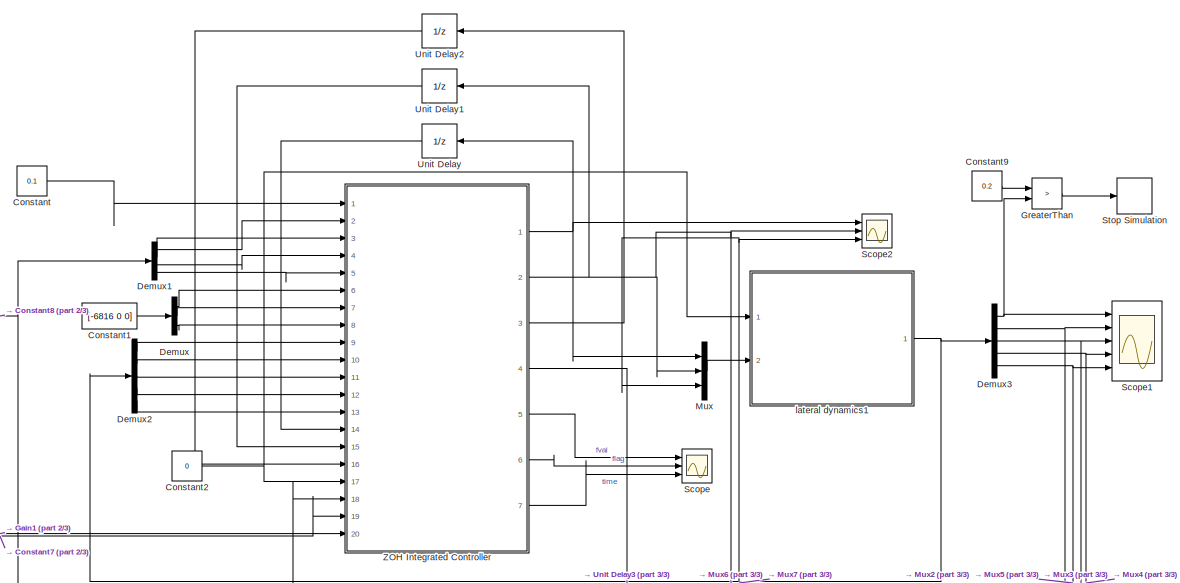
[diagram: root canvas - part 1/3, top center region]
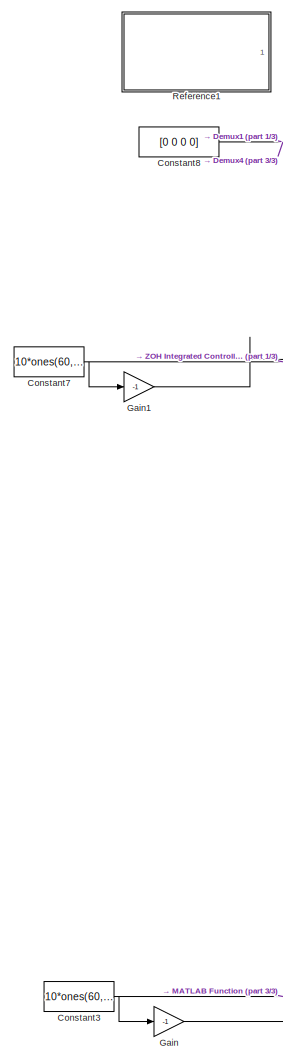
[diagram: root canvas - part 2/3, left side, full height]
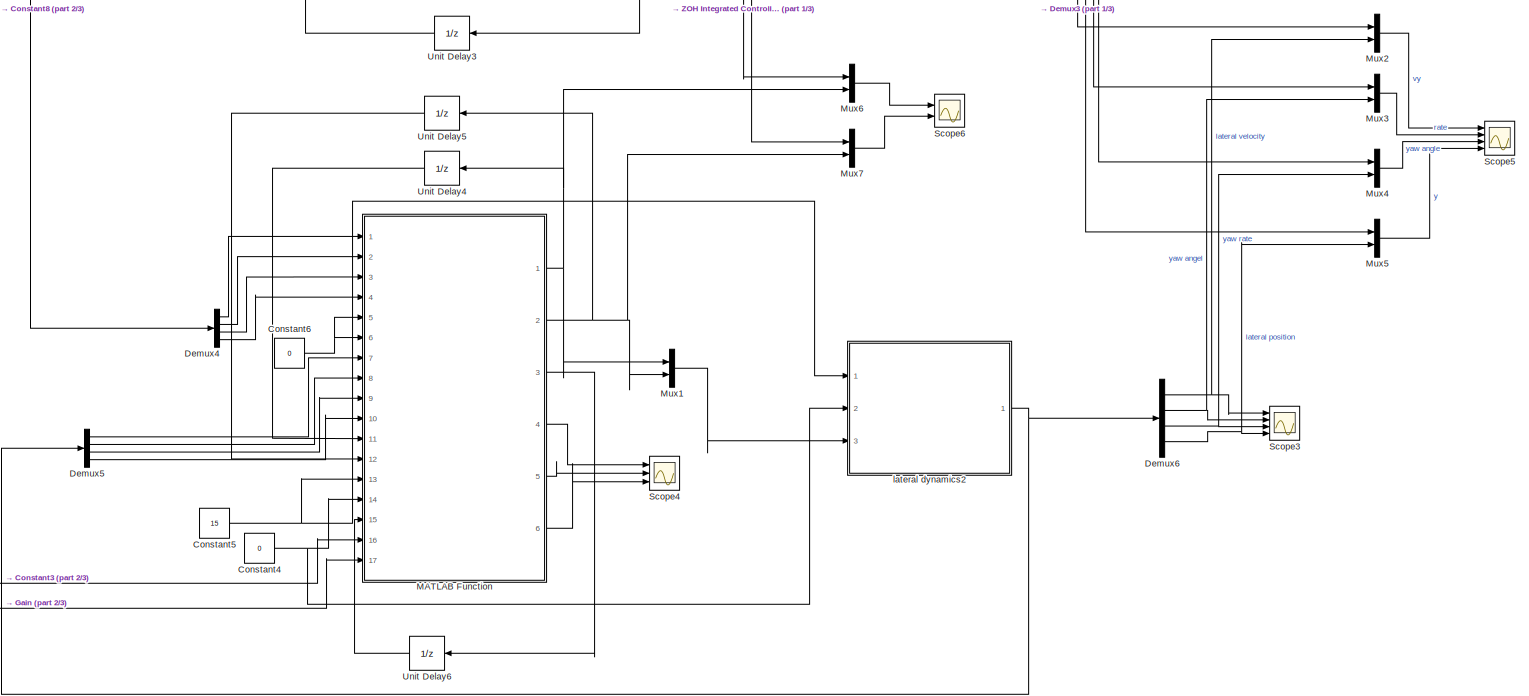
[diagram: root canvas - part 3/3, full width, bottom band]
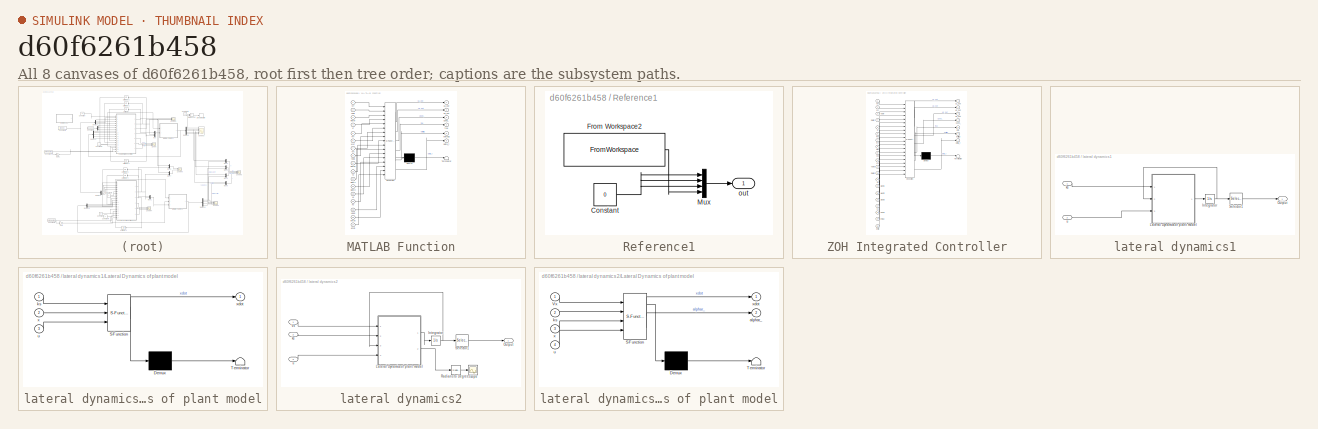
[diagram: thumbnail index - all 8 canvases of the model, root first then tree order]
MODEL slx_d60f6261b458
KIND model
CONFIG AbsTol = auto
CONFIG EnableMultiTasking = off
CONFIG FixedStep = auto
CONFIG MaxStep = auto
CONFIG MinStep = auto
CONFIG RelTol = 1e-3
CONFIG SampleTimeConstraint = Unconstrained
CONFIG SolverName = VariableStepAuto
CONFIG StartTime = 0.0
CONFIG StopTime = 30
BLOCK [Constant] Constant
  Value = 0.1
BLOCK [Constant] Constant1
  Value = [-6816 0 0]
BLOCK [Constant] Constant2
  Value = 0
BLOCK [Constant] Constant3
  Value = 10*ones(60,1)
BLOCK [Constant] Constant4
  Value = 0
BLOCK [Constant] Constant5
  Value = 15
BLOCK [Constant] Constant6
  Value = 0
BLOCK [Constant] Constant7
  Value = 10*ones(60,1)
BLOCK [Constant] Constant8
  Value = [0 0 0 0]
BLOCK [Constant] Constant9
  Value = 0.2
BLOCK [Demux] Demux
  Outputs = 3
  Ports = [1, 3]
BLOCK [Demux] Demux1
  Ports = [1, 4]
BLOCK [Demux] Demux2
  Outputs = 5
  Ports = [1, 5]
BLOCK [Demux] Demux3
  Outputs = 5
  Ports = [1, 5]
BLOCK [Demux] Demux4
  Ports = [1, 4]
BLOCK [Demux] Demux5
  Ports = [1, 4]
BLOCK [Demux] Demux6
  Ports = [1, 4]
BLOCK [Gain] Gain
  Gain = -1
BLOCK [Gain] Gain1
  Gain = -1
BLOCK [RelationalOperator] GreaterThan
  InputSameDT = off
  Operator = >
  OutDataTypeStr = boolean
  Ports = [2, 1]
  RndMeth = Simplest
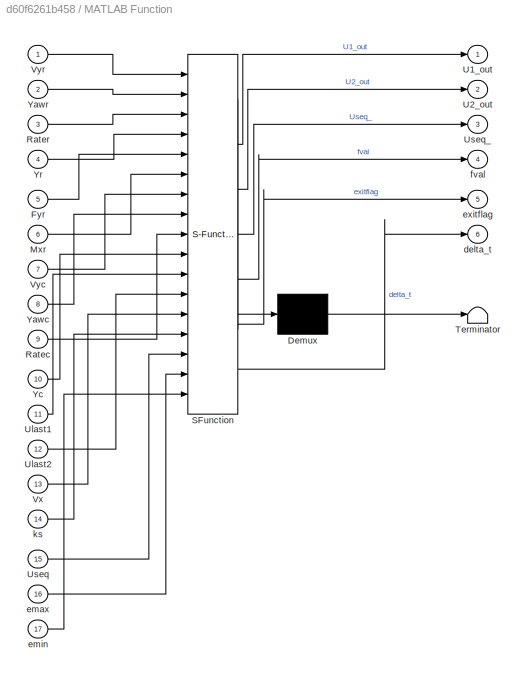
BLOCK [SubSystem] MATLAB Function
  ErrorFcn = Stateflow.Translate.translate
  PermitHierarchicalResolution = ExplicitOnly
  Ports = [17, 6]
  RequestExecContextInheritance = off
  SFBlockType = MATLAB Function
  TreatAsAtomicUnit = on
BLOCK [Demux] MATLAB Function/ Demux 
  Outputs = 1
  Ports = [1, 1]
BLOCK [S-Function] MATLAB Function/ SFunction 
  EnableBusSupport = on
  FunctionName = sf_sfun
  PortCounts = [17 7]
  Ports = [17, 7]
  SFcnIsStateOwnerBlock = off
  SFunctionDeploymentMode = off
  Tag = Stateflow S-Function 2
BLOCK [Terminator] MATLAB Function/ Terminator 
BLOCK [Inport] MATLAB Function/Fyr
  Port = 5
BLOCK [Inport] MATLAB Function/Mxr
  Port = 6
BLOCK [Inport] MATLAB Function/Ratec
  Port = 9
BLOCK [Inport] MATLAB Function/Rater
  Port = 3
BLOCK [Outport] MATLAB Function/U1_out
BLOCK [Outport] MATLAB Function/U2_out
  Port = 2
BLOCK [Inport] MATLAB Function/Ulast1
  Port = 11
BLOCK [Inport] MATLAB Function/Ulast2
  Port = 12
BLOCK [Inport] MATLAB Function/Useq
  Port = 15
BLOCK [Outport] MATLAB Function/Useq_
  Port = 3
BLOCK [Inport] MATLAB Function/Vx
  Port = 13
BLOCK [Inport] MATLAB Function/Vyc
  Port = 7
BLOCK [Inport] MATLAB Function/Vyr
BLOCK [Inport] MATLAB Function/Yawc
  Port = 8
BLOCK [Inport] MATLAB Function/Yawr
  Port = 2
BLOCK [Inport] MATLAB Function/Yc
  Port = 10
BLOCK [Inport] MATLAB Function/Yr
  Port = 4
BLOCK [Outport] MATLAB Function/delta_t
  Port = 6
BLOCK [Inport] MATLAB Function/emax
  Port = 16
BLOCK [Inport] MATLAB Function/emin
  Port = 17
BLOCK [Outport] MATLAB Function/exitflag
  Port = 5
BLOCK [Outport] MATLAB Function/fval
  Port = 4
BLOCK [Inport] MATLAB Function/ks
  Port = 14
BLOCK [Mux] Mux
  DisplayOption = bar
  Inputs = 3
  Ports = [3, 1]
BLOCK [Mux] Mux1
  DisplayOption = bar
  Inputs = 2
  Ports = [2, 1]
BLOCK [Mux] Mux2
  DisplayOption = bar
  Inputs = 2
  Ports = [2, 1]
BLOCK [Mux] Mux3
  DisplayOption = bar
  Inputs = 2
  Ports = [2, 1]
BLOCK [Mux] Mux4
  DisplayOption = bar
  Inputs = 2
  Ports = [2, 1]
BLOCK [Mux] Mux5
  DisplayOption = bar
  Inputs = 2
  Ports = [2, 1]
BLOCK [Mux] Mux6
  DisplayOption = bar
  Inputs = 2
  Ports = [2, 1]
BLOCK [Mux] Mux7
  DisplayOption = bar
  Inputs = 2
  Ports = [2, 1]
BLOCK [SubSystem] Reference1
  AncestorBlock = Meldas_library/Reference
  Commented = on
  Ports = [0, 1]
  RequestExecContextInheritance = off
BLOCK [Constant] Reference1/Constant
  Value = 0
BLOCK [FromWorkspace] Reference1/From Workspace2
  SampleTime = 0.1
  VariableName = [t', posRef(:,2)]
BLOCK [Mux] Reference1/Mux
  DisplayOption = bar
  Ports = [4, 1]
BLOCK [Outport] Reference1/out
  VectorParamsAs1DForOutWhenUnconnected = off
BLOCK [Scope] Scope
  Floating = off
  NumInputPorts = 3
  Ports = [3]
  ScopeSpecificationString = Simulink.scopes.TimeScopeBlockCfg('CurrentConfiguration', extmgr.ConfigurationSet(extmgr.Configuration('Core','General UI',true),extmgr.Configuration('Core','Source UI',true),extmgr.Configuration('Sources','WiredSimulink',true),extmgr.Configuration('Visuals','Time Domain',true),extmgr.Configuration('Tools','Plot Navigation',true),extmgr.Configuration('Tools','Measurements',true)),'Version','2021a'...<+1ch>
BLOCK [Scope] Scope1
  Floating = off
  NumInputPorts = 5
  Ports = [5]
  ScopeSpecificationString = Simulink.scopes.TimeScopeBlockCfg('CurrentConfiguration', extmgr.ConfigurationSet(extmgr.Configuration('Core','General UI',true),extmgr.Configuration('Core','Source UI',true),extmgr.Configuration('Sources','WiredSimulink',true,'DataLoggingVariableName','ScopeData1'),extmgr.Configuration('Visuals','Time Domain',true,'SerializedDisplays',{struct('MinYLimReal','-1.65','MaxYLimReal','16.85','YLabelRea...<+4874ch>
BLOCK [Scope] Scope2
  Floating = off
  NumInputPorts = 3
  Ports = [3]
  ScopeSpecificationString = Simulink.scopes.TimeScopeBlockCfg('CurrentConfiguration', extmgr.ConfigurationSet(extmgr.Configuration('Core','General UI',true),extmgr.Configuration('Core','Source UI',true),extmgr.Configuration('Sources','WiredSimulink',true,'DataLoggingVariableName','ScopeData2'),extmgr.Configuration('Visuals','Time Domain',true,'SerializedDisplays',{struct('MinYLimReal','-6991.23781','MaxYLimReal','-5238.85975...<+2841ch>
BLOCK [Scope] Scope3
  Floating = off
  NumInputPorts = 4
  Ports = [4]
  ScopeSpecificationString = Simulink.scopes.TimeScopeBlockCfg('CurrentConfiguration', extmgr.ConfigurationSet(extmgr.Configuration('Core','General UI',true),extmgr.Configuration('Core','Source UI',true),extmgr.Configuration('Sources','WiredSimulink',true,'DataLoggingVariableName','ScopeData3'),extmgr.Configuration('Visuals','Time Domain',true,'SerializedDisplays',{struct('MinYLimReal','-0.01164','MaxYLimReal','0.01519','YLab...<+3442ch>
BLOCK [Scope] Scope4
  Floating = off
  NumInputPorts = 3
  Ports = [3]
  ScopeSpecificationString = Simulink.scopes.TimeScopeBlockCfg('CurrentConfiguration', extmgr.ConfigurationSet(extmgr.Configuration('Core','General UI',true),extmgr.Configuration('Core','Source UI',true),extmgr.Configuration('Sources','WiredSimulink',true,'DataLoggingVariableName','ScopeData4'),extmgr.Configuration('Visuals','Time Domain',true,'SerializedDisplays',{struct('MinYLimReal','-0.17216','MaxYLimReal','0.01913','YLab...<+2788ch>
BLOCK [Scope] Scope5
  Floating = off
  NumInputPorts = 4
  Ports = [4]
  ScopeSpecificationString = Simulink.scopes.TimeScopeBlockCfg('CurrentConfiguration', extmgr.ConfigurationSet(extmgr.Configuration('Core','General UI',true),extmgr.Configuration('Core','Source UI',true),extmgr.Configuration('Sources','WiredSimulink',true,'DataLoggingVariableName','ScopeData5'),extmgr.Configuration('Visuals','Time Domain',true,'SerializedDisplays',{struct('MinYLimReal','-0.15752','MaxYLimReal','0.1228','YLabe...<+3455ch>
BLOCK [Scope] Scope6
  Floating = off
  NumInputPorts = 2
  Ports = [2]
  ScopeSpecificationString = Simulink.scopes.TimeScopeBlockCfg('CurrentConfiguration', extmgr.ConfigurationSet(extmgr.Configuration('Core','General UI',true),extmgr.Configuration('Core','Source UI',true),extmgr.Configuration('Sources','WiredSimulink',true,'DataLoggingVariableName','ScopeData6'),extmgr.Configuration('Visuals','Time Domain',true,'SerializedDisplays',{struct('MinYLimReal','-654.67402','MaxYLimReal','930.74647','...<+2125ch>
BLOCK [Stop] Stop Simulation
BLOCK [UnitDelay] Unit Delay
  HasFrameUpgradeWarning = on
  SampleTime = -1
BLOCK [UnitDelay] Unit Delay1
  HasFrameUpgradeWarning = on
  SampleTime = -1
BLOCK [UnitDelay] Unit Delay2
  HasFrameUpgradeWarning = on
  SampleTime = -1
BLOCK [UnitDelay] Unit Delay3
  HasFrameUpgradeWarning = on
  InitialCondition = [[-6816 0 0];zeros(60,3)]
  SampleTime = -1
BLOCK [UnitDelay] Unit Delay4
  HasFrameUpgradeWarning = on
  SampleTime = -1
BLOCK [UnitDelay] Unit Delay5
  HasFrameUpgradeWarning = on
  SampleTime = -1
BLOCK [UnitDelay] Unit Delay6
  HasFrameUpgradeWarning = on
  InitialCondition = zeros(61,2)
  SampleTime = -1
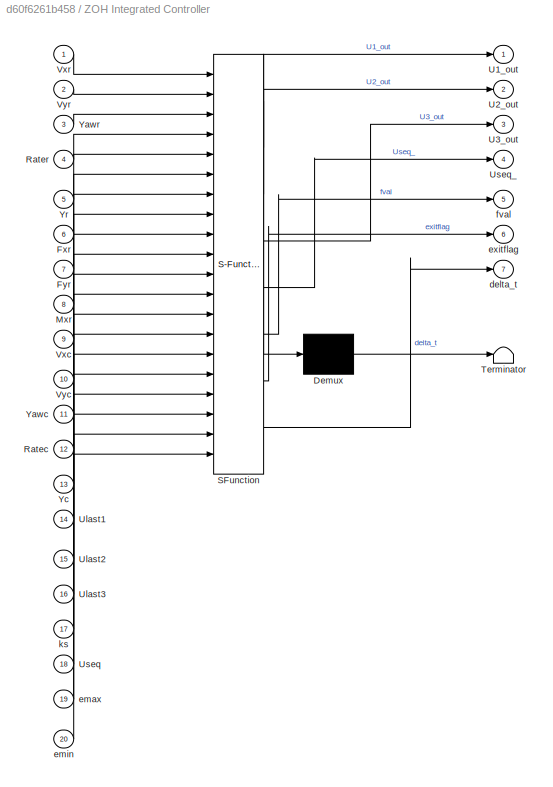
BLOCK [SubSystem] ZOH Integrated Controller
  ErrorFcn = Stateflow.Translate.translate
  PermitHierarchicalResolution = ExplicitOnly
  Ports = [20, 7]
  RequestExecContextInheritance = off
  SFBlockType = MATLAB Function
  TreatAsAtomicUnit = on
BLOCK [Demux] ZOH Integrated Controller/ Demux 
  Outputs = 1
  Ports = [1, 1]
BLOCK [S-Function] ZOH Integrated Controller/ SFunction 
  EnableBusSupport = on
  FunctionName = sf_sfun
  PortCounts = [20 8]
  Ports = [20, 8]
  SFcnIsStateOwnerBlock = off
  SFunctionDeploymentMode = off
  Tag = Stateflow S-Function 1
BLOCK [Terminator] ZOH Integrated Controller/ Terminator 
BLOCK [Inport] ZOH Integrated Controller/Fxr
  Port = 6
BLOCK [Inport] ZOH Integrated Controller/Fyr
  Port = 7
BLOCK [Inport] ZOH Integrated Controller/Mxr
  Port = 8
BLOCK [Inport] ZOH Integrated Controller/Ratec
  Port = 12
BLOCK [Inport] ZOH Integrated Controller/Rater
  Port = 4
BLOCK [Outport] ZOH Integrated Controller/U1_out
BLOCK [Outport] ZOH Integrated Controller/U2_out
  Port = 2
BLOCK [Outport] ZOH Integrated Controller/U3_out
  Port = 3
BLOCK [Inport] ZOH Integrated Controller/Ulast1
  Port = 14
BLOCK [Inport] ZOH Integrated Controller/Ulast2
  Port = 15
BLOCK [Inport] ZOH Integrated Controller/Ulast3
  Port = 16
BLOCK [Inport] ZOH Integrated Controller/Useq
  Port = 18
BLOCK [Outport] ZOH Integrated Controller/Useq_
  Port = 4
BLOCK [Inport] ZOH Integrated Controller/Vxc
  Port = 9
BLOCK [Inport] ZOH Integrated Controller/Vxr
BLOCK [Inport] ZOH Integrated Controller/Vyc
  Port = 10
BLOCK [Inport] ZOH Integrated Controller/Vyr
  Port = 2
BLOCK [Inport] ZOH Integrated Controller/Yawc
  Port = 11
BLOCK [Inport] ZOH Integrated Controller/Yawr
  Port = 3
BLOCK [Inport] ZOH Integrated Controller/Yc
  Port = 13
BLOCK [Inport] ZOH Integrated Controller/Yr
  Port = 5
BLOCK [Outport] ZOH Integrated Controller/delta_t
  Port = 7
BLOCK [Inport] ZOH Integrated Controller/emax
  Port = 19
BLOCK [Inport] ZOH Integrated Controller/emin
  Port = 20
BLOCK [Outport] ZOH Integrated Controller/exitflag
  Port = 6
BLOCK [Outport] ZOH Integrated Controller/fval
  Port = 5
BLOCK [Inport] ZOH Integrated Controller/ks
  Port = 17
BLOCK [SubSystem] lateral dynamics1
  Ports = [2, 1]
  RequestExecContextInheritance = off
BLOCK [Integrator] lateral dynamics1/Integrator
  InitialCondition = [15 0 0 0 0]
  Ports = [1, 1]
BLOCK [SubSystem] lateral dynamics1/Lateral Dynamics of plant model
  ErrorFcn = Stateflow.Translate.translate
  PermitHierarchicalResolution = ExplicitOnly
  Ports = [3, 1]
  RequestExecContextInheritance = off
  SFBlockType = MATLAB Function
  TreatAsAtomicUnit = on
BLOCK [Demux] lateral dynamics1/Lateral Dynamics of plant model/ Demux 
  Outputs = 1
  Ports = [1, 1]
BLOCK [S-Function] lateral dynamics1/Lateral Dynamics of plant model/ SFunction 
  EnableBusSupport = on
  FunctionName = sf_sfun
  PortCounts = [3 2]
  Ports = [3, 2]
  SFcnIsStateOwnerBlock = off
  SFunctionDeploymentMode = off
  Tag = Stateflow S-Function 3
BLOCK [Terminator] lateral dynamics1/Lateral Dynamics of plant model/ Terminator 
BLOCK [Inport] lateral dynamics1/Lateral Dynamics of plant model/ks
BLOCK [Inport] lateral dynamics1/Lateral Dynamics of plant model/u
  Port = 3
BLOCK [Inport] lateral dynamics1/Lateral Dynamics of plant model/x
  Port = 2
BLOCK [Outport] lateral dynamics1/Lateral Dynamics of plant model/xdot
BLOCK [Outport] lateral dynamics1/Output
BLOCK [Selector] lateral dynamics1/Selector1
  IndexOptions = Index vector (dialog)
  Indices = [1 2 3 4 5]
  InputPortWidth = 5
  OutputSizes = 1
  Ports = [1, 1]
BLOCK [Inport] lateral dynamics1/ks
BLOCK [Inport] lateral dynamics1/u
  Port = 2
BLOCK [SubSystem] lateral dynamics2
  Ports = [3, 1]
  RequestExecContextInheritance = off
BLOCK [Integrator] lateral dynamics2/Integrator
  Ports = [1, 1]
BLOCK [SubSystem] lateral dynamics2/Lateral Dynamics of plant model
  ErrorFcn = Stateflow.Translate.translate
  PermitHierarchicalResolution = ExplicitOnly
  Ports = [4, 2]
  RequestExecContextInheritance = off
  SFBlockType = MATLAB Function
  TreatAsAtomicUnit = on
BLOCK [Demux] lateral dynamics2/Lateral Dynamics of plant model/ Demux 
  Outputs = 1
  Ports = [1, 1]
BLOCK [S-Function] lateral dynamics2/Lateral Dynamics of plant model/ SFunction 
  EnableBusSupport = on
  FunctionName = sf_sfun
  PortCounts = [4 3]
  Ports = [4, 3]
  SFcnIsStateOwnerBlock = off
  SFunctionDeploymentMode = off
  Tag = Stateflow S-Function 4
BLOCK [Terminator] lateral dynamics2/Lateral Dynamics of plant model/ Terminator 
BLOCK [Inport] lateral dynamics2/Lateral Dynamics of plant model/Vx
BLOCK [Outport] lateral dynamics2/Lateral Dynamics of plant model/alphar_
  Port = 2
BLOCK [Inport] lateral dynamics2/Lateral Dynamics of plant model/ks
  Port = 2
BLOCK [Inport] lateral dynamics2/Lateral Dynamics of plant model/u
  Port = 4
BLOCK [Inport] lateral dynamics2/Lateral Dynamics of plant model/x
  Port = 3
BLOCK [Outport] lateral dynamics2/Lateral Dynamics of plant model/xdot
BLOCK [Outport] lateral dynamics2/Output
BLOCK [Reference] lateral dynamics2/Radians to Degrees  REF=simulink_extras/Transformations/Radians
to Degrees
  Ports = [1, 1]
  SourceBlock = simulink_extras/Transformations/Radians\nto Degrees
  SourceProductBaseCode = SL
  SourceType = RadiansToDegrees
BLOCK [Scope] lateral dynamics2/Scope
  Floating = off
  NumInputPorts = 1
  Ports = [1]
  ScopeSpecificationString = Simulink.scopes.TimeScopeBlockCfg('CurrentConfiguration', extmgr.ConfigurationSet(extmgr.Configuration('Core','General UI',true),extmgr.Configuration('Core','Source UI',true),extmgr.Configuration('Sources','WiredSimulink',true,'DataLoggingVariableName','ScopeData1'),extmgr.Configuration('Visuals','Time Domain',true,'SerializedDisplays',{struct('MinYLimReal','-0.89178','MaxYLimReal','0.67452','YLab...<+1377ch>
BLOCK [Selector] lateral dynamics2/Selector1
  IndexOptions = Index vector (dialog)
  Indices = [1 2 3 4]
  InputPortWidth = 4
  OutputSizes = 1
  Ports = [1, 1]
BLOCK [Inport] lateral dynamics2/Vx
BLOCK [Inport] lateral dynamics2/ks
  Port = 2
BLOCK [Inport] lateral dynamics2/u
  Port = 3
LINE Constant1:1 -> Demux:1
NET Constant2:1 -> ZOH Integrated Controller:17, lateral dynamics1:1
NET Constant3:1 -> Gain:1, MATLAB Function:16
NET Constant4:1 -> MATLAB Function:14, lateral dynamics2:2
NET Constant5:1 -> MATLAB Function:13, lateral dynamics2:1
NET Constant6:1 -> MATLAB Function:5, MATLAB Function:6
NET Constant7:1 -> Gain1:1, ZOH Integrated Controller:19
NET Constant8:1 -> Demux1:1, Demux4:1
LINE Constant9:1 -> GreaterThan:1
LINE Constant:1 -> ZOH Integrated Controller:1
LINE Demux1:1 -> ZOH Integrated Controller:2
LINE Demux1:2 -> ZOH Integrated Controller:3
LINE Demux1:3 -> ZOH Integrated Controller:4
LINE Demux1:4 -> ZOH Integrated Controller:5
LINE Demux2:1 -> ZOH Integrated Controller:9
LINE Demux2:2 -> ZOH Integrated Controller:10
LINE Demux2:3 -> ZOH Integrated Controller:11
LINE Demux2:4 -> ZOH Integrated Controller:12
LINE Demux2:5 -> ZOH Integrated Controller:13
NET Demux3:1 -> GreaterThan:2, Scope1:1
NET Demux3:2 -> Mux2:1, Scope1:2
NET Demux3:3 -> Mux3:1, Scope1:3
NET Demux3:4 -> Mux4:1, Scope1:4
NET Demux3:5 -> Mux5:1, Scope1:5
LINE Demux4:1 -> MATLAB Function:1
LINE Demux4:2 -> MATLAB Function:2
LINE Demux4:3 -> MATLAB Function:3
LINE Demux4:4 -> MATLAB Function:4
LINE Demux5:1 -> MATLAB Function:7
LINE Demux5:2 -> MATLAB Function:8
LINE Demux5:3 -> MATLAB Function:9
LINE Demux5:4 -> MATLAB Function:10
NET Demux6:1 -> Mux2:2, Scope3:1
NET Demux6:2 -> Mux3:2, Scope3:2
NET Demux6:3 -> Mux4:2, Scope3:3
NET Demux6:4 -> Mux5:2, Scope3:4
LINE Demux:1 -> ZOH Integrated Controller:6
LINE Demux:2 -> ZOH Integrated Controller:7
LINE Demux:3 -> ZOH Integrated Controller:8
LINE Gain1:1 -> ZOH Integrated Controller:20
LINE Gain:1 -> MATLAB Function:17
LINE GreaterThan:1 -> Stop Simulation:1
NET MATLAB Function:1 -> Mux1:1, Mux6:2, Unit Delay4:1
NET MATLAB Function:2 -> Mux1:2, Mux7:2, Unit Delay5:1
LINE MATLAB Function:3 -> Unit Delay6:1
LINE MATLAB Function:4 -> Scope4:1
LINE MATLAB Function:5 -> Scope4:2
LINE MATLAB Function:6 -> Scope4:3
LINE Mux1:1 -> lateral dynamics2:3
LINE Mux2:1 -> Scope5:1
LINE Mux3:1 -> Scope5:2
LINE Mux4:1 -> Scope5:3
LINE Mux5:1 -> Scope5:4
LINE Mux6:1 -> Scope6:1
LINE Mux7:1 -> Scope6:2
LINE Mux:1 -> lateral dynamics1:2
LINE Unit Delay1:1 -> ZOH Integrated Controller:15
LINE Unit Delay2:1 -> ZOH Integrated Controller:16
LINE Unit Delay3:1 -> ZOH Integrated Controller:18
LINE Unit Delay4:1 -> MATLAB Function:11
LINE Unit Delay5:1 -> MATLAB Function:12
LINE Unit Delay6:1 -> MATLAB Function:15
LINE Unit Delay:1 -> ZOH Integrated Controller:14
NET ZOH Integrated Controller:1 -> Mux:1, Scope2:1, Unit Delay:1
NET ZOH Integrated Controller:2 -> Mux6:1, Mux:2, Scope2:2, Unit Delay1:1
NET ZOH Integrated Controller:3 -> Mux7:1, Mux:3, Scope2:3, Unit Delay2:1
LINE ZOH Integrated Controller:4 -> Unit Delay3:1
LINE ZOH Integrated Controller:5 -> Scope:1
LINE ZOH Integrated Controller:6 -> Scope:2
LINE ZOH Integrated Controller:7 -> Scope:3
NET lateral dynamics1/Integrator:1 -> lateral dynamics1/Lateral Dynamics of plant model:2, lateral dynamics1/Selector1:1
LINE lateral dynamics1/Lateral Dynamics of plant model:1 -> lateral dynamics1/Integrator:1
LINE lateral dynamics1/Selector1:1 -> lateral dynamics1/Output:1
LINE lateral dynamics1/ks:1 -> lateral dynamics1/Lateral Dynamics of plant model:1
LINE lateral dynamics1/u:1 -> lateral dynamics1/Lateral Dynamics of plant model:3
NET lateral dynamics1:1 -> Demux2:1, Demux3:1
NET lateral dynamics2/Integrator:1 -> lateral dynamics2/Lateral Dynamics of plant model:3, lateral dynamics2/Selector1:1
LINE lateral dynamics2/Lateral Dynamics of plant model:1 -> lateral dynamics2/Integrator:1
LINE lateral dynamics2/Lateral Dynamics of plant model:2 -> lateral dynamics2/Radians to Degrees:1
LINE lateral dynamics2/Radians to Degrees:1 -> lateral dynamics2/Scope:1
LINE lateral dynamics2/Selector1:1 -> lateral dynamics2/Output:1
LINE lateral dynamics2/Vx:1 -> lateral dynamics2/Lateral Dynamics of plant model:1
LINE lateral dynamics2/ks:1 -> lateral dynamics2/Lateral Dynamics of plant model:2
LINE lateral dynamics2/u:1 -> lateral dynamics2/Lateral Dynamics of plant model:4
NET lateral dynamics2:1 -> Demux5:1, Demux6:1
note: NET lines group one-source signal fan-out (src -> all destinations, sorted); 1:1 wires keep LINE
CHART lateral dynamics2/Lateral Dynamics of plant model states=1 transitions=1
  STATE_LABEL 'eML_blk_kernel()'
  STATE_LABEL 'SCRIPT:\nfunction [xdot,alphar_] = fcn(Vx,ks, x, u)\n\n%Plant Model parameters\nm = 2272;   %mass\nIz = 4600;  %rotational inertia\nlf = 1.11;  % distance from front axle to the mass center\nlr = 1.67;  % distance from rear axle to the mass center\nC_a = 1.822e5; % rear cornering stifness \n\n%Enviroment parameters\nmiu = 0.7; %frction cooeficient 0.7 for dry road and 0.4 for wet\ng = 9.81; % gravity\n\nFz = m*...<+1071ch>'
CHART ZOH Integrated Controller states=1 transitions=1
  STATE_LABEL 'eML_blk_kernel()'
  STATE_LABEL "SCRIPT:\nfunction [U1_out,U2_out,U3_out,Useq_,fval,exitflag,delta_t] = fcn(Vxr,Vyr,Yawr,Rater,Yr, Fxr,Fyr,Mxr,Vxc,Vyc,Yawc,Ratec,Yc,Ulast1,Ulast2,Ulast3,ks,Useq,emax,emin)\n%Vyr lateral velocity, Yawr yaw angle, Rater yaw rate, Yr lateral position\n%Fyr lateral force in front tyre,Mxr moment generated by longitudinal force\n%'r'means reference ||  'c'means current\n\n    tstart=tic;%timing on\n    \n    i...<+3608ch>"
CHART MATLAB Function states=1 transitions=1
  STATE_LABEL 'eML_blk_kernel()'
  STATE_LABEL "SCRIPT:\nfunction [U1_out,U2_out,Useq_,fval,exitflag,delta_t] = fcn(Vyr,Yawr,Rater,Yr, Fyr,Mxr,Vyc,Yawc,Ratec,Yc,Ulast1,Ulast2,Vx,ks,Useq,emax,emin)\n%Vyr lateral velocity, Yawr yaw angle, Rater yaw rate, Yr lateral position\n%Fyr lateral force in front tyre,Mxr moment generated by longitudinal force\n%'r'means reference ||  'c'means current\n    if Vx<0.1\n        Vx=0.001;%make sure many expressions' ...<+3608ch>"
CHART lateral dynamics1/Lateral Dynamics of plant model states=1 transitions=1
  STATE_LABEL 'eML_blk_kernel()'
  STATE_LABEL 'SCRIPT:\nfunction xdot = fcn(ks, x, u)\n\n%Plant Model parameters\nm = 2272;   %mass\nIz = 4600;  %rotational inertia\nlf = 1.11;  % distance from front axle to the mass center\nlr = 1.67;  % distance from rear axle to the mass center\nC_a = 1.822e5; % rear cornering stifness \n\n%Enviroment parameters\nmiu = 0.7; %frction cooeficient 0.7 for dry road and 0.4 for wet\ng = 9.81; % gravity\n\nFz = m*g*lf/(lf+lr);...<+1172ch>'
CHART  states=0 transitions=0
CHART  states=0 transitions=0
CHART  states=0 transitions=0
CHART  states=0 transitions=0
